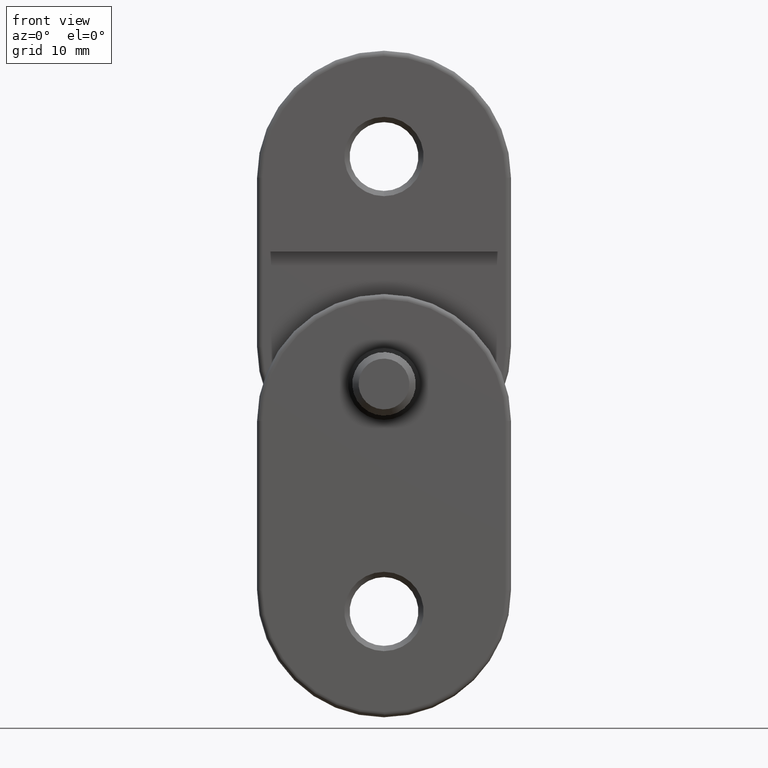
[diagram: clean part render]
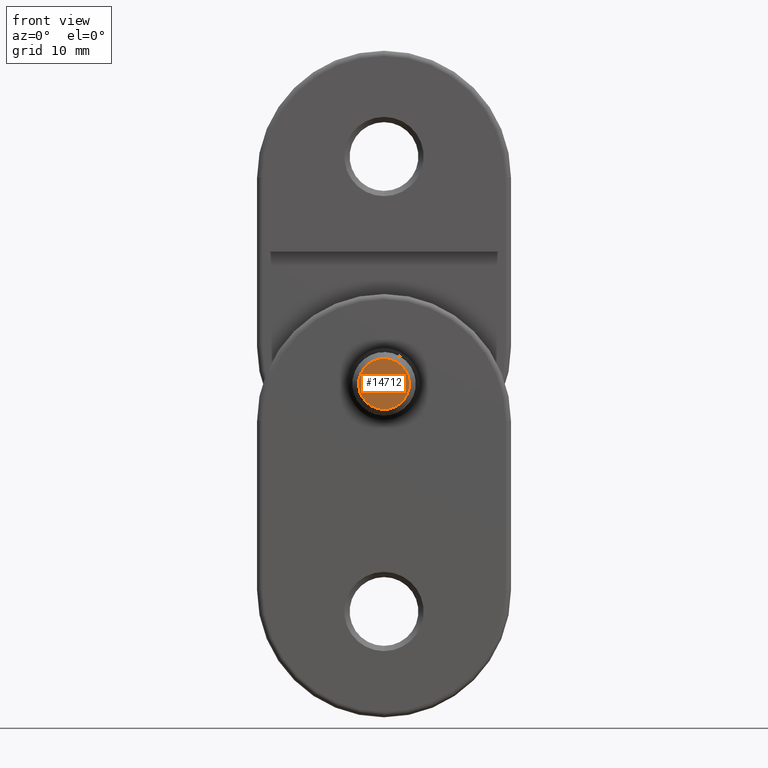
[diagram: same view with one face highlighted and labeled with its STEP entity id]
A machine part, front view. The second image highlights one B-rep face of the part: STEP entity #14712.
In plain terms, the highlighted planar face has unit normal (0, -1, -0).
Its self-contained STEP definition (entity closure, byte-faithful):
#217 = PLANE ( 'NONE',  #6471 ) ;
#753 = DIRECTION ( 'NONE',  ( 0.000000000000000000, -1.000000000000000000, 0.000000000000000000 ) ) ;
#2897 = VERTEX_POINT ( 'NONE', #5008 ) ;
#4004 = ORIENTED_EDGE ( 'NONE', *, *, #4275, .T. ) ;
#4275 = EDGE_CURVE ( 'NONE', #2897, #15015, #14750, .T. ) ;
#4367 = EDGE_CURVE ( 'NONE', #15015, #2897, #10383, .T. ) ;
#4905 = CARTESIAN_POINT ( 'NONE',  ( 0.000000000000000000, -1.714505518806294638E-15, 14.00000000000000000 ) ) ;
#5008 = CARTESIAN_POINT ( 'NONE',  ( 0.000000000000000000, 2.399999999999991918, 14.00000000000000000 ) ) ;
#6151 = EDGE_LOOP ( 'NONE', ( #4004, #9080 ) ) ;
#6471 = AXIS2_PLACEMENT_3D ( 'NONE', #4905, #12220, #11130 ) ;
#6584 = DIRECTION ( 'NONE',  ( 0.000000000000000000, -1.000000000000000000, 0.000000000000000000 ) ) ;
#8089 = AXIS2_PLACEMENT_3D ( 'NONE', #8703, #8757, #6584 ) ;
#8703 = CARTESIAN_POINT ( 'NONE',  ( 0.000000000000000000, -1.714505518806294638E-15, 14.00000000000000000 ) ) ;
#8757 = DIRECTION ( 'NONE',  ( 0.000000000000000000, -1.224646799147353207E-16, 1.000000000000000000 ) ) ;
#9080 = ORIENTED_EDGE ( 'NONE', *, *, #4367, .T. ) ;
#10383 = CIRCLE ( 'NONE', #12159, 2.399999999999993694 ) ;
#11130 = DIRECTION ( 'NONE',  ( 0.000000000000000000, -1.000000000000000000, -1.224646799147353207E-16 ) ) ;
#11693 = DIRECTION ( 'NONE',  ( 0.000000000000000000, -1.224646799147353207E-16, 1.000000000000000000 ) ) ;
#12159 = AXIS2_PLACEMENT_3D ( 'NONE', #15235, #11693, #753 ) ;
#12220 = DIRECTION ( 'NONE',  ( 0.000000000000000000, -1.224646799147353207E-16, 1.000000000000000000 ) ) ;
#12263 = FACE_OUTER_BOUND ( 'NONE', #6151, .T. ) ;
#14712 = ADVANCED_FACE ( 'NONE', ( #12263 ), #217, .T. ) ;
#14750 = CIRCLE ( 'NONE', #8089, 2.399999999999993694 ) ;
#15015 = VERTEX_POINT ( 'NONE', #15403 ) ;
#15235 = CARTESIAN_POINT ( 'NONE',  ( 0.000000000000000000, -1.714505518806294638E-15, 14.00000000000000000 ) ) ;
#15403 = CARTESIAN_POINT ( 'NONE',  ( 3.306546357697847324E-16, -2.399999999999995470, 14.00000000000000000 ) ) ;